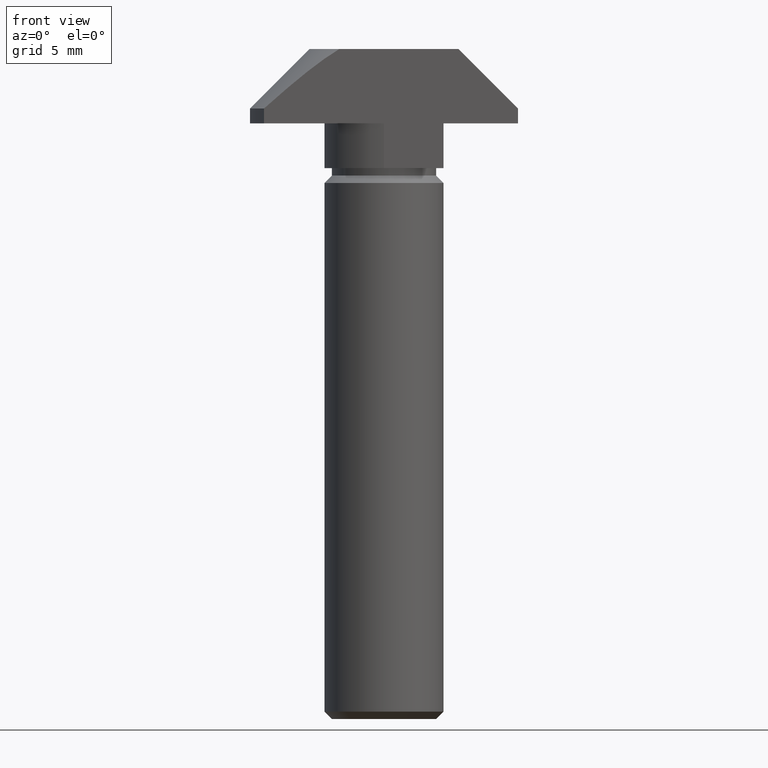
[diagram: clean part render]
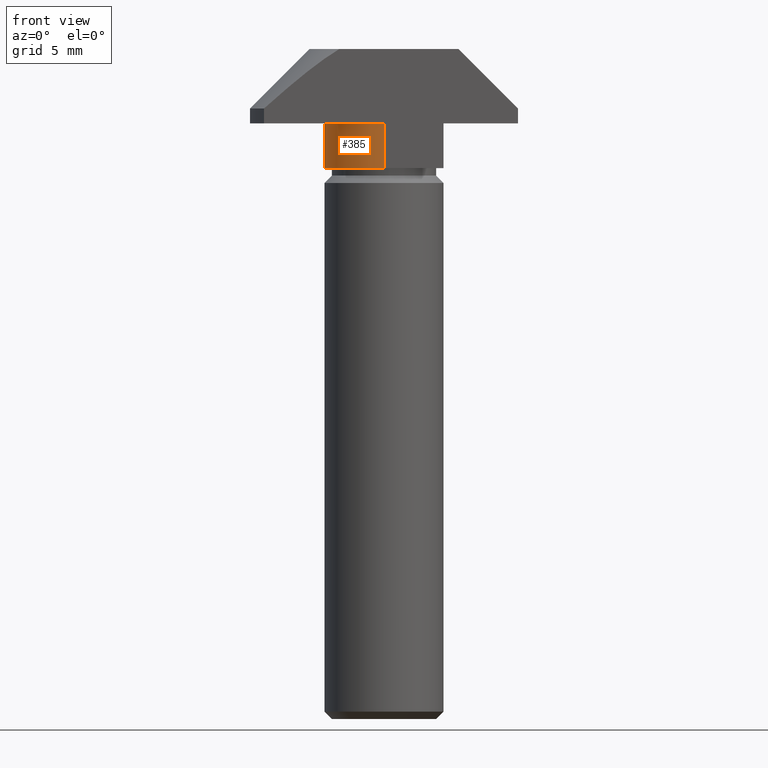
[diagram: same view with one face highlighted and labeled with its STEP entity id]
A machine part, front view. The second image highlights one B-rep face of the part: STEP entity #385.
In plain terms, the highlighted cylindrical surface (partial cylindrical patch) has radius 4 mm, axis along (0, 0, -1).
Its self-contained STEP definition (entity closure, byte-faithful):
#33=CYLINDRICAL_SURFACE('',#436,4.00000000000001);
#43=FACE_OUTER_BOUND('',#66,.T.);
#66=EDGE_LOOP('',(#286,#287,#288,#289));
#91=LINE('',#607,#129);
#92=LINE('',#613,#130);
#129=VECTOR('',#494,10.);
#130=VECTOR('',#501,10.);
#165=CIRCLE('',#437,4.00000000000001);
#166=CIRCLE('',#438,4.00000000000001);
#181=VERTEX_POINT('',#601);
#183=VERTEX_POINT('',#605);
#184=VERTEX_POINT('',#609);
#185=VERTEX_POINT('',#611);
#222=EDGE_CURVE('',#181,#183,#91,.T.);
#223=EDGE_CURVE('',#181,#184,#165,.T.);
#224=EDGE_CURVE('',#185,#183,#166,.T.);
#225=EDGE_CURVE('',#184,#185,#92,.T.);
#286=ORIENTED_EDGE('',*,*,#223,.F.);
#287=ORIENTED_EDGE('',*,*,#222,.T.);
#288=ORIENTED_EDGE('',*,*,#224,.F.);
#289=ORIENTED_EDGE('',*,*,#225,.F.);
#385=ADVANCED_FACE('',(#43),#33,.T.);
#436=AXIS2_PLACEMENT_3D('',#608,#495,#496);
#437=AXIS2_PLACEMENT_3D('',#610,#497,#498);
#438=AXIS2_PLACEMENT_3D('',#612,#499,#500);
#494=DIRECTION('',(0.,0.,-1.));
#495=DIRECTION('center_axis',(0.,0.,-1.));
#496=DIRECTION('ref_axis',(2.7755575615629E-16,1.,0.));
#497=DIRECTION('center_axis',(0.,0.,1.));
#498=DIRECTION('ref_axis',(2.7755575615629E-16,1.,0.));
#499=DIRECTION('center_axis',(0.,0.,-1.));
#500=DIRECTION('ref_axis',(2.7755575615629E-16,1.,0.));
#501=DIRECTION('',(0.,0.,-1.));
#601=CARTESIAN_POINT('',(-3.99999999999999,-1.4432899320127E-14,-5.));
#605=CARTESIAN_POINT('',(-3.99999999999999,-1.4432899320127E-14,-8.));
#607=CARTESIAN_POINT('',(-3.99999999999999,-1.4432899320127E-14,-5.));
#608=CARTESIAN_POINT('Origin',(1.11022302462516E-15,-1.33226762955019E-14,
-5.));
#609=CARTESIAN_POINT('',(0.,-4.00000000000001,-5.));
#610=CARTESIAN_POINT('Origin',(1.11022302462516E-15,-1.33226762955019E-14,
-5.));
#611=CARTESIAN_POINT('',(0.,-4.00000000000001,-8.));
#612=CARTESIAN_POINT('Origin',(1.11022302462516E-15,-1.33226762955019E-14,
-8.));
#613=CARTESIAN_POINT('',(0.,-4.00000000000001,-5.));